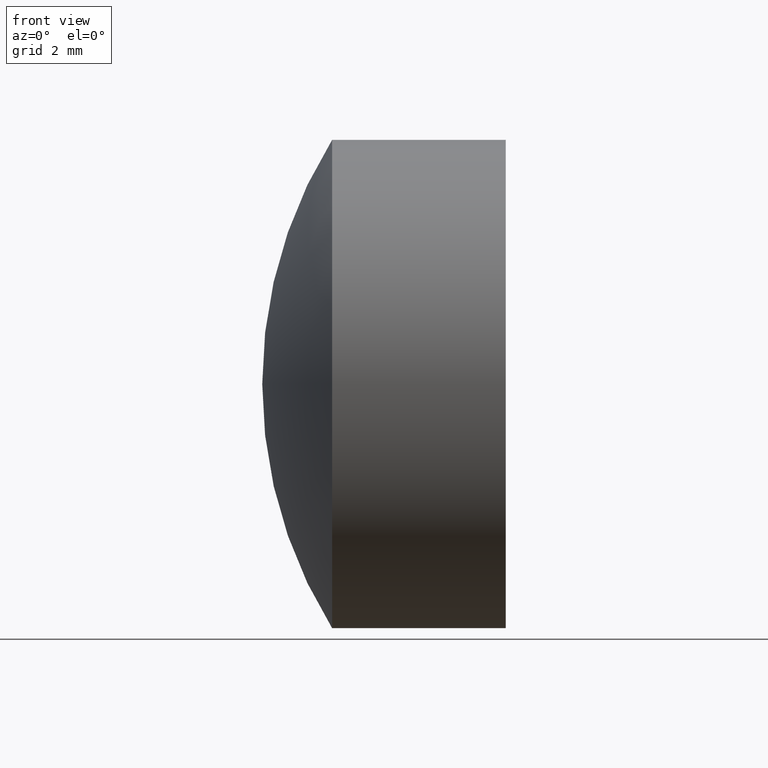
[diagram: clean part render]
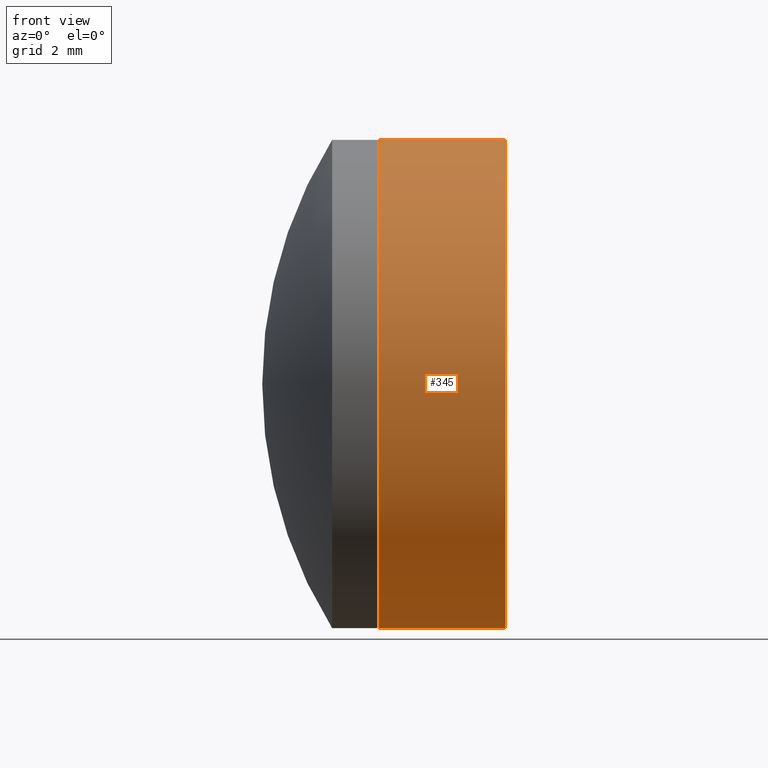
[diagram: same view with one face highlighted and labeled with its STEP entity id]
A machine part, front view. The second image highlights one B-rep face of the part: STEP entity #345.
In plain terms, the highlighted cylindrical surface (partial cylindrical patch) has radius 6.35 mm, axis along (-1, -0, -0).
Its self-contained STEP definition (entity closure, byte-faithful):
#1 = CIRCLE ( 'NONE', #304, 6.349999999999997900 ) ;
#13 = CARTESIAN_POINT ( 'NONE',  ( 26.85887678485193300, 0.0000000000000000000, 0.0000000000000000000 ) ) ;
#18 = CARTESIAN_POINT ( 'NONE',  ( -0.5519199926577972300, 7.776507174585690200E-016, -6.349999999999997900 ) ) ;
#20 = CIRCLE ( 'NONE', #109, 6.349999999999997000 ) ;
#24 = EDGE_CURVE ( 'NONE', #136, #30, #20, .T. ) ;
#26 = ORIENTED_EDGE ( 'NONE', *, *, #24, .T. ) ;
#30 = VERTEX_POINT ( 'NONE', #48 ) ;
#31 = VECTOR ( 'NONE', #284, 1000.000000000000000 ) ;
#35 = LINE ( 'NONE', #323, #31 ) ;
#41 = EDGE_CURVE ( 'NONE', #128, #112, #1, .T. ) ;
#48 = CARTESIAN_POINT ( 'NONE',  ( 26.85887678485193700, -7.776507174585457500E-016, 6.349999999999806900 ) ) ;
#49 = CARTESIAN_POINT ( 'NONE',  ( 23.56072451241537300, -7.776507174585689200E-016, 6.349999999999996100 ) ) ;
#50 = DIRECTION ( 'NONE',  ( 0.0000000000000000000, 0.0000000000000000000, 1.000000000000000000 ) ) ;
#70 = DIRECTION ( 'NONE',  ( 0.0000000000000000000, 0.0000000000000000000, 1.000000000000000000 ) ) ;
#75 = DIRECTION ( 'NONE',  ( -1.000000000000000000, -0.0000000000000000000, -0.0000000000000000000 ) ) ;
#87 = VECTOR ( 'NONE', #119, 1000.000000000000000 ) ;
#109 = AXIS2_PLACEMENT_3D ( 'NONE', #13, #75, #50 ) ;
#112 = VERTEX_POINT ( 'NONE', #49 ) ;
#113 = ORIENTED_EDGE ( 'NONE', *, *, #218, .F. ) ;
#119 = DIRECTION ( 'NONE',  ( -1.000000000000000000, -0.0000000000000000000, -0.0000000000000000000 ) ) ;
#128 = VERTEX_POINT ( 'NONE', #236 ) ;
#130 = CYLINDRICAL_SURFACE ( 'NONE', #170, 6.349999999999997900 ) ;
#136 = VERTEX_POINT ( 'NONE', #313 ) ;
#158 = EDGE_LOOP ( 'NONE', ( #113, #26, #167, #225 ) ) ;
#167 = ORIENTED_EDGE ( 'NONE', *, *, #325, .T. ) ;
#169 = CARTESIAN_POINT ( 'NONE',  ( 23.56072451241537300, 0.0000000000000000000, 0.0000000000000000000 ) ) ;
#170 = AXIS2_PLACEMENT_3D ( 'NONE', #274, #174, #70 ) ;
#174 = DIRECTION ( 'NONE',  ( -1.000000000000000000, -0.0000000000000000000, -0.0000000000000000000 ) ) ;
#176 = FACE_OUTER_BOUND ( 'NONE', #158, .T. ) ;
#198 = DIRECTION ( 'NONE',  ( 0.0000000000000000000, 0.0000000000000000000, 1.000000000000000000 ) ) ;
#218 = EDGE_CURVE ( 'NONE', #136, #128, #305, .T. ) ;
#225 = ORIENTED_EDGE ( 'NONE', *, *, #41, .F. ) ;
#231 = DIRECTION ( 'NONE',  ( -1.000000000000000000, -0.0000000000000000000, -0.0000000000000000000 ) ) ;
#236 = CARTESIAN_POINT ( 'NONE',  ( 23.56072451241537300, 0.0000000000000000000, -6.349999999999996100 ) ) ;
#274 = CARTESIAN_POINT ( 'NONE',  ( -0.5519199926577972300, 0.0000000000000000000, 0.0000000000000000000 ) ) ;
#284 = DIRECTION ( 'NONE',  ( -1.000000000000000000, -0.0000000000000000000, -0.0000000000000000000 ) ) ;
#304 = AXIS2_PLACEMENT_3D ( 'NONE', #169, #231, #198 ) ;
#305 = LINE ( 'NONE', #18, #87 ) ;
#313 = CARTESIAN_POINT ( 'NONE',  ( 26.85887678485193700, 0.0000000000000000000, -6.349999999999806900 ) ) ;
#323 = CARTESIAN_POINT ( 'NONE',  ( -0.5519199926577972300, 0.0000000000000000000, 6.349999999999997900 ) ) ;
#325 = EDGE_CURVE ( 'NONE', #30, #112, #35, .T. ) ;
#345 = ADVANCED_FACE ( 'NONE', ( #176 ), #130, .T. ) ;